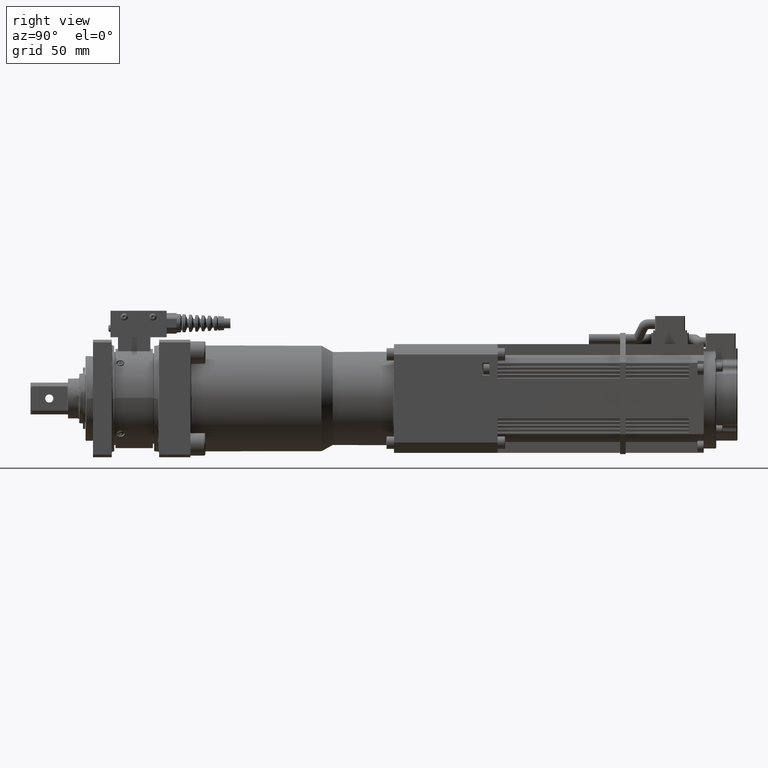
[diagram: clean part render]
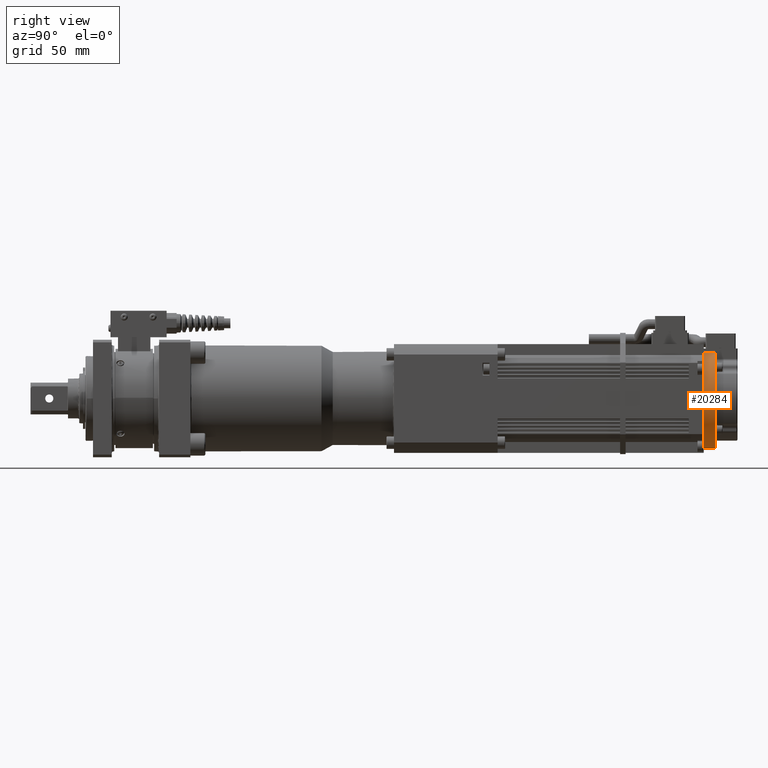
[diagram: same view with one face highlighted and labeled with its STEP entity id]
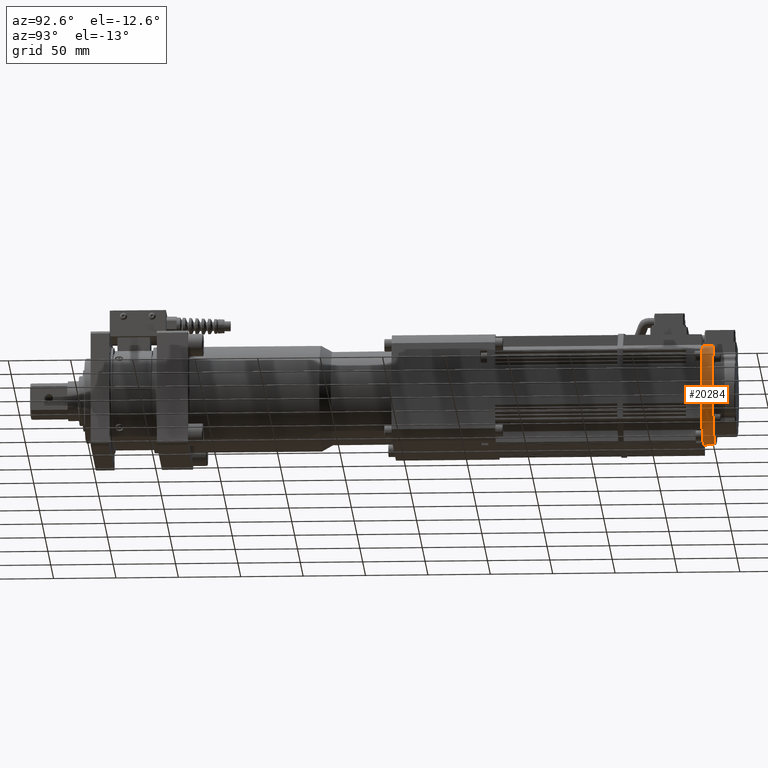
[diagram: same view with one face highlighted and labeled with its STEP entity id]
A machine part, right view. The second image highlights one B-rep face of the part: STEP entity #20284.
A second angle (auxiliary view) of the same face is appended — the face is thin or edge-on in the first view.
In plain terms, the highlighted cylindrical surface (partial cylindrical patch) has radius 40 mm, axis along (-0, 1, -0).
Its self-contained STEP definition (entity closure, byte-faithful):
#2038=FACE_OUTER_BOUND('',#3253,.T.);
#3253=EDGE_LOOP('',(#16777,#16778,#16779,#16780,#16781,#16782,#16783,#16784,
#16785,#16786,#16787,#16788));
#4217=CIRCLE('',#21861,40.);
#4218=CIRCLE('',#21864,40.);
#4246=CIRCLE('',#21906,40.);
#4248=CIRCLE('',#21909,40.);
#4252=CIRCLE('',#21914,40.);
#4263=CIRCLE('',#21933,40.);
#4265=CIRCLE('',#21939,40.);
#4267=CIRCLE('',#21945,40.);
#4328=CIRCLE('',#22077,40.);
#4329=CIRCLE('',#22078,40.);
#5512=LINE('',#34457,#7305);
#5513=LINE('',#34463,#7306);
#7305=VECTOR('',#26368,10.);
#7306=VECTOR('',#26375,10.);
#9220=VERTEX_POINT('',#33697);
#9222=VERTEX_POINT('',#33703);
#9238=VERTEX_POINT('',#33755);
#9284=VERTEX_POINT('',#33886);
#9285=VERTEX_POINT('',#33888);
#9290=VERTEX_POINT('',#33899);
#9291=VERTEX_POINT('',#33901);
#9295=VERTEX_POINT('',#33911);
#9298=VERTEX_POINT('',#33918);
#9467=VERTEX_POINT('',#34454);
#9468=VERTEX_POINT('',#34459);
#9469=VERTEX_POINT('',#34461);
#11722=EDGE_CURVE('',#9220,#9238,#4217,.T.);
#11726=EDGE_CURVE('',#9220,#9222,#4218,.T.);
#11779=EDGE_CURVE('',#9284,#9285,#4246,.T.);
#11785=EDGE_CURVE('',#9290,#9291,#4248,.T.);
#11795=EDGE_CURVE('',#9298,#9295,#4252,.T.);
#11841=EDGE_CURVE('',#9291,#9298,#4263,.T.);
#11850=EDGE_CURVE('',#9285,#9290,#4265,.T.);
#11859=EDGE_CURVE('',#9238,#9284,#4267,.T.);
#12047=EDGE_CURVE('',#9295,#9467,#5512,.T.);
#12048=EDGE_CURVE('',#9467,#9468,#4328,.T.);
#12049=EDGE_CURVE('',#9469,#9222,#4329,.T.);
#12050=EDGE_CURVE('',#9468,#9469,#5513,.T.);
#16777=ORIENTED_EDGE('',*,*,#12048,.F.);
#16778=ORIENTED_EDGE('',*,*,#12047,.F.);
#16779=ORIENTED_EDGE('',*,*,#11795,.F.);
#16780=ORIENTED_EDGE('',*,*,#11841,.F.);
#16781=ORIENTED_EDGE('',*,*,#11785,.F.);
#16782=ORIENTED_EDGE('',*,*,#11850,.F.);
#16783=ORIENTED_EDGE('',*,*,#11779,.F.);
#16784=ORIENTED_EDGE('',*,*,#11859,.F.);
#16785=ORIENTED_EDGE('',*,*,#11722,.F.);
#16786=ORIENTED_EDGE('',*,*,#11726,.T.);
#16787=ORIENTED_EDGE('',*,*,#12049,.F.);
#16788=ORIENTED_EDGE('',*,*,#12050,.F.);
#19466=CYLINDRICAL_SURFACE('',#22076,40.);
#20284=ADVANCED_FACE('',(#2038),#19466,.T.);
#21861=AXIS2_PLACEMENT_3D('',#33761,#25728,#25729);
#21864=AXIS2_PLACEMENT_3D('',#33767,#25737,#25738);
#21906=AXIS2_PLACEMENT_3D('',#33889,#25845,#25846);
#21909=AXIS2_PLACEMENT_3D('',#33902,#25855,#25856);
#21914=AXIS2_PLACEMENT_3D('',#33920,#25871,#25872);
#21933=AXIS2_PLACEMENT_3D('',#34006,#25944,#25945);
#21939=AXIS2_PLACEMENT_3D('',#34023,#25963,#25964);
#21945=AXIS2_PLACEMENT_3D('',#34040,#25982,#25983);
#22076=AXIS2_PLACEMENT_3D('',#34458,#26369,#26370);
#22077=AXIS2_PLACEMENT_3D('',#34460,#26371,#26372);
#22078=AXIS2_PLACEMENT_3D('',#34462,#26373,#26374);
#25728=DIRECTION('center_axis',(3.96750887945431E-16,-1.,1.17835930746298E-16));
#25729=DIRECTION('ref_axis',(1.,3.96750887945432E-16,2.55351295663786E-15));
#25737=DIRECTION('center_axis',(-3.96750887945431E-16,1.,-1.17835930746298E-16));
#25738=DIRECTION('ref_axis',(1.,3.96750887945432E-16,2.55351295663786E-15));
#25845=DIRECTION('center_axis',(3.96750887945431E-16,-1.,1.17835930746298E-16));
#25846=DIRECTION('ref_axis',(1.,3.96750887945432E-16,2.55351295663786E-15));
#25855=DIRECTION('center_axis',(3.96750887945431E-16,-1.,1.17835930746298E-16));
#25856=DIRECTION('ref_axis',(1.,3.96750887945432E-16,2.55351295663786E-15));
#25871=DIRECTION('center_axis',(3.96750887945431E-16,-1.,1.17835930746298E-16));
#25872=DIRECTION('ref_axis',(1.,3.96750887945432E-16,2.55351295663786E-15));
#25944=DIRECTION('center_axis',(3.96750887945431E-16,-1.,1.17835930746298E-16));
#25945=DIRECTION('ref_axis',(1.,3.96750887945432E-16,2.55351295663786E-15));
#25963=DIRECTION('center_axis',(3.96750887945431E-16,-1.,1.17835930746298E-16));
#25964=DIRECTION('ref_axis',(1.,3.96750887945432E-16,2.55351295663786E-15));
#25982=DIRECTION('center_axis',(3.96750887945431E-16,-1.,1.17835930746298E-16));
#25983=DIRECTION('ref_axis',(1.,3.96750887945432E-16,2.55351295663786E-15));
#26368=DIRECTION('',(-3.96750887945431E-16,1.,-1.17835930746298E-16));
#26369=DIRECTION('center_axis',(-3.96750887945431E-16,1.,-1.17835930746298E-16));
#26370=DIRECTION('ref_axis',(2.83678990152026E-15,-1.17835930746297E-16,
-1.));
#26371=DIRECTION('center_axis',(-3.96750887945431E-16,1.,-1.17835930746298E-16));
#26372=DIRECTION('ref_axis',(2.61474529659523E-15,-1.17835930746297E-16,
-1.));
#26373=DIRECTION('center_axis',(3.96750887945431E-16,-1.,1.17835930746298E-16));
#26374=DIRECTION('ref_axis',(1.,3.96750887945432E-16,2.55351295663786E-15));
#26375=DIRECTION('',(3.96750887945431E-16,-1.,1.17835930746298E-16));
#33697=CARTESIAN_POINT('',(-21.8574929943945,489.,33.4999999999999));
#33703=CARTESIAN_POINT('',(-18.5000000000001,489.,35.4647712526106));
#33755=CARTESIAN_POINT('',(-35.4647712526107,489.,-18.5000000000001));
#33761=CARTESIAN_POINT('Origin',(-6.8004461117091E-14,489.,-4.30614202345979E-14));
#33767=CARTESIAN_POINT('Origin',(-6.8004461117091E-14,489.,-4.30614202345979E-14));
#33886=CARTESIAN_POINT('',(-33.5,489.,-21.8574929943945));
#33888=CARTESIAN_POINT('',(18.5,489.,-35.4647712526107));
#33889=CARTESIAN_POINT('Origin',(-6.8004461117091E-14,489.,-4.30614202345979E-14));
#33899=CARTESIAN_POINT('',(21.8574929943944,489.,-33.5));
#33901=CARTESIAN_POINT('',(35.4647712526106,489.,18.5));
#33902=CARTESIAN_POINT('Origin',(-6.8004461117091E-14,489.,-4.30614202345979E-14));
#33911=CARTESIAN_POINT('',(16.190476190476,489.,36.57688451366));
#33918=CARTESIAN_POINT('',(33.4999999999999,489.,21.8574929943944));
#33920=CARTESIAN_POINT('Origin',(-6.8004461117091E-14,489.,-4.30614202345979E-14));
#34006=CARTESIAN_POINT('Origin',(-6.8004461117091E-14,489.,-4.30614202345979E-14));
#34023=CARTESIAN_POINT('Origin',(-6.8004461117091E-14,489.,-4.30614202345979E-14));
#34040=CARTESIAN_POINT('Origin',(-6.8004461117091E-14,489.,-4.30614202345979E-14));
#34454=CARTESIAN_POINT('',(16.190476190476,498.,36.57688451366));
#34457=CARTESIAN_POINT('',(16.190476190476,489.,36.57688451366));
#34458=CARTESIAN_POINT('Origin',(-6.8004461117091E-14,489.,-4.30614202345979E-14));
#34459=CARTESIAN_POINT('',(-16.1904761904764,498.,36.5768845136599));
#34460=CARTESIAN_POINT('Origin',(-7.15752191085999E-14,498.,-4.41219436113146E-14));
#34461=CARTESIAN_POINT('',(-16.1904761904764,489.,36.5768845136599));
#34462=CARTESIAN_POINT('Origin',(-6.8004461117091E-14,489.,-4.30614202345979E-14));
#34463=CARTESIAN_POINT('',(-16.1904761904764,489.,36.5768845136599));